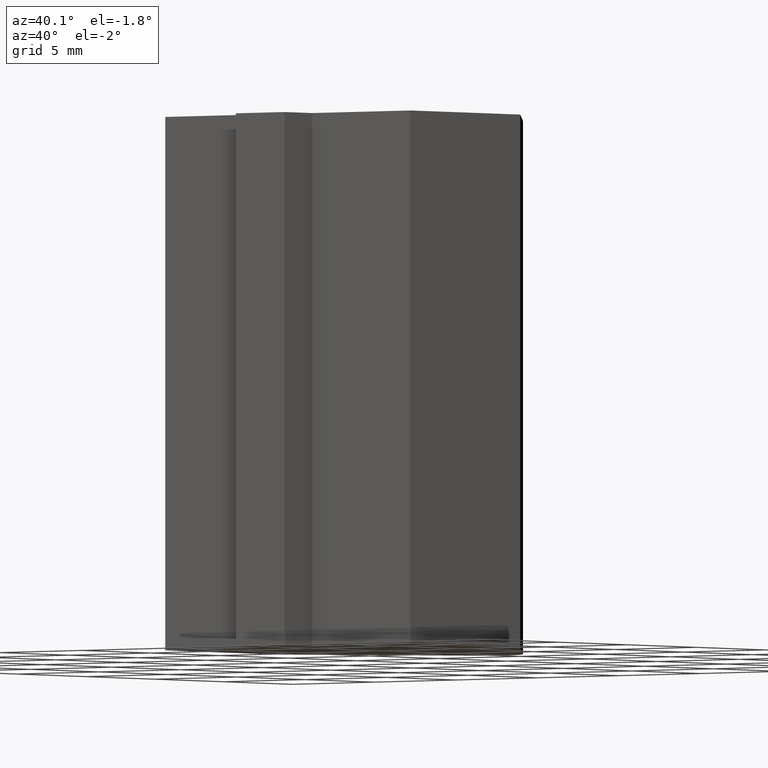
[diagram: clean part render]
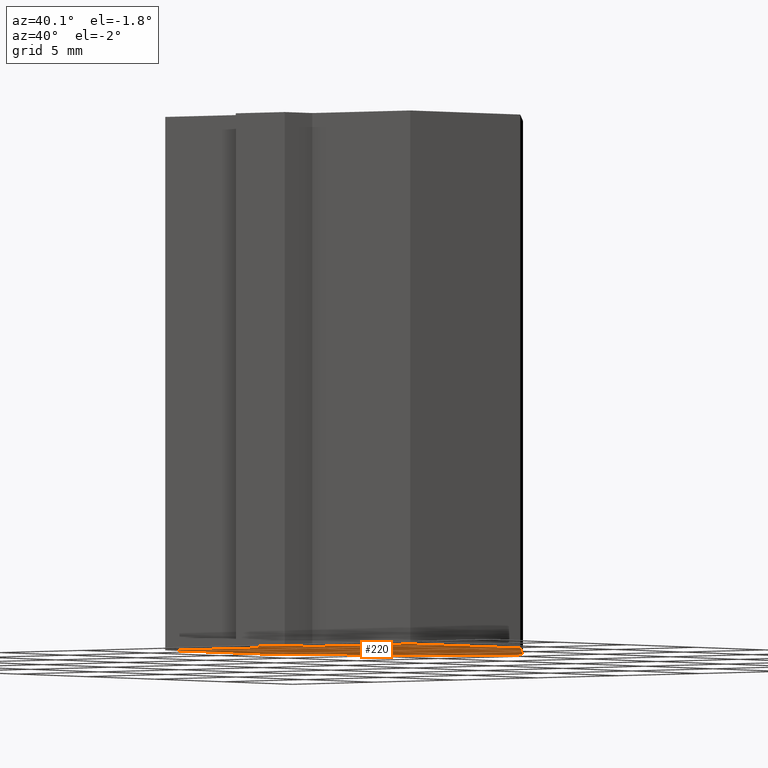
[diagram: same view with one face highlighted and labeled with its STEP entity id]
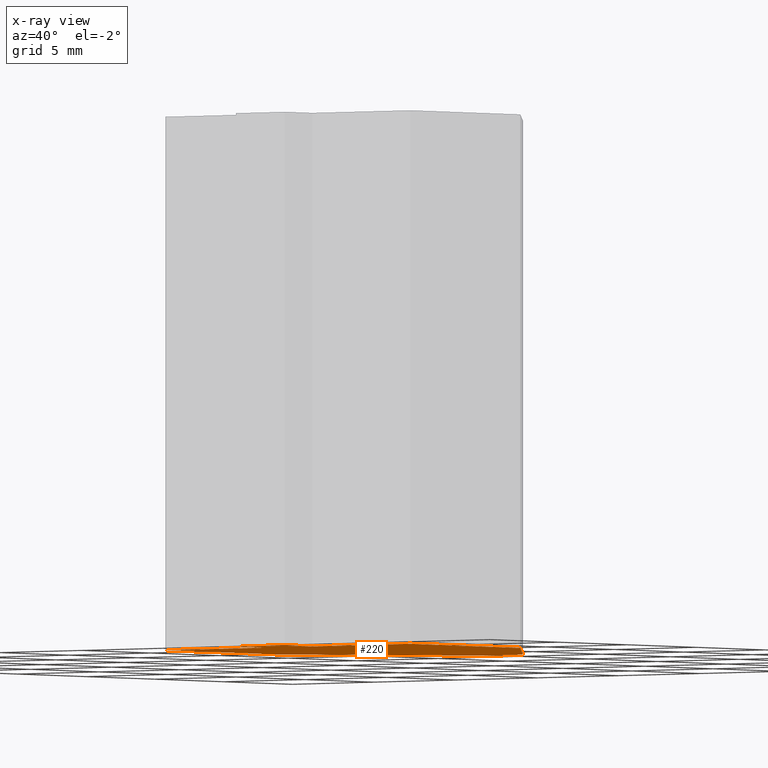
[diagram: x-ray of the same camera — body ghosted, the highlighted face saturated]
A machine part, auxiliary view. The second image highlights one B-rep face of the part: STEP entity #220.
The next image is the same camera in x-ray: the body ghosted, the highlighted face saturated — about 0% of this face is hidden behind the body in this view.
In plain terms, the highlighted planar face has unit normal (0, 0, 1).
Its self-contained STEP definition (entity closure, byte-faithful):
#17=FACE_OUTER_BOUND('',#29,.T.);
#29=EDGE_LOOP('',(#149,#150,#151,#152,#153,#154,#155,#156,#157,#158));
#41=CIRCLE('',#256,2.);
#43=LINE('',#331,#71);
#44=LINE('',#333,#72);
#45=LINE('',#335,#73);
#46=LINE('',#337,#74);
#47=LINE('',#339,#75);
#48=LINE('',#341,#76);
#49=LINE('',#343,#77);
#50=LINE('',#345,#78);
#51=LINE('',#348,#79);
#71=VECTOR('',#273,10.);
#72=VECTOR('',#274,10.);
#73=VECTOR('',#275,10.);
#74=VECTOR('',#276,10.);
#75=VECTOR('',#277,10.);
#76=VECTOR('',#278,10.);
#77=VECTOR('',#279,10.);
#78=VECTOR('',#280,10.);
#79=VECTOR('',#283,10.);
#99=VERTEX_POINT('',#329);
#100=VERTEX_POINT('',#330);
#101=VERTEX_POINT('',#332);
#102=VERTEX_POINT('',#334);
#103=VERTEX_POINT('',#336);
#104=VERTEX_POINT('',#338);
#105=VERTEX_POINT('',#340);
#106=VERTEX_POINT('',#342);
#107=VERTEX_POINT('',#344);
#108=VERTEX_POINT('',#346);
#119=EDGE_CURVE('',#99,#100,#43,.T.);
#120=EDGE_CURVE('',#101,#99,#44,.T.);
#121=EDGE_CURVE('',#102,#101,#45,.T.);
#122=EDGE_CURVE('',#103,#102,#46,.T.);
#123=EDGE_CURVE('',#104,#103,#47,.T.);
#124=EDGE_CURVE('',#105,#104,#48,.T.);
#125=EDGE_CURVE('',#106,#105,#49,.T.);
#126=EDGE_CURVE('',#107,#106,#50,.T.);
#127=EDGE_CURVE('',#108,#107,#41,.T.);
#128=EDGE_CURVE('',#100,#108,#51,.T.);
#149=ORIENTED_EDGE('',*,*,#119,.F.);
#150=ORIENTED_EDGE('',*,*,#120,.F.);
#151=ORIENTED_EDGE('',*,*,#121,.F.);
#152=ORIENTED_EDGE('',*,*,#122,.F.);
#153=ORIENTED_EDGE('',*,*,#123,.F.);
#154=ORIENTED_EDGE('',*,*,#124,.F.);
#155=ORIENTED_EDGE('',*,*,#125,.F.);
#156=ORIENTED_EDGE('',*,*,#126,.F.);
#157=ORIENTED_EDGE('',*,*,#127,.F.);
#158=ORIENTED_EDGE('',*,*,#128,.F.);
#209=PLANE('',#255);
#220=ADVANCED_FACE('',(#17),#209,.F.);
#255=AXIS2_PLACEMENT_3D('',#328,#271,#272);
#256=AXIS2_PLACEMENT_3D('',#347,#281,#282);
#271=DIRECTION('center_axis',(0.,0.,1.));
#272=DIRECTION('ref_axis',(1.,0.,0.));
#273=DIRECTION('',(0.,1.,0.));
#274=DIRECTION('',(1.,-1.22464679914736E-16,0.));
#275=DIRECTION('',(-5.55111512312578E-16,1.,0.));
#276=DIRECTION('',(1.,0.,0.));
#277=DIRECTION('',(-5.55111512312578E-16,-1.,0.));
#278=DIRECTION('',(1.,1.22464679914736E-16,0.));
#279=DIRECTION('',(0.,-1.,0.));
#280=DIRECTION('',(-0.633670497075444,-0.773603064327023,0.));
#281=DIRECTION('center_axis',(0.,0.,1.));
#282=DIRECTION('ref_axis',(-0.773603064327022,-0.633670497075445,0.));
#283=DIRECTION('',(-0.633670497075444,0.773603064327023,0.));
#328=CARTESIAN_POINT('Origin',(-4.16333634234434E-16,5.72386949192024,-12.5));
#329=CARTESIAN_POINT('',(7.5,2.21076160048808E-15,-12.5));
#330=CARTESIAN_POINT('',(7.5,8.,-12.5));
#331=CARTESIAN_POINT('',(7.5,8.,-12.5));
#332=CARTESIAN_POINT('',(1.5,2.9455496799765E-15,-12.5));
#333=CARTESIAN_POINT('',(7.5,2.21076160048808E-15,-12.5));
#334=CARTESIAN_POINT('',(1.5,-2.,-12.5));
#335=CARTESIAN_POINT('',(1.5,2.9455496799765E-15,-12.5));
#336=CARTESIAN_POINT('',(-1.5,-2.,-12.5));
#337=CARTESIAN_POINT('',(1.5,-2.,-12.5));
#338=CARTESIAN_POINT('',(-1.5,2.9455496799765E-15,-12.5));
#339=CARTESIAN_POINT('',(-1.5,-2.,-12.5));
#340=CARTESIAN_POINT('',(-7.5,2.21076160048808E-15,-12.5));
#341=CARTESIAN_POINT('',(-1.5,2.9455496799765E-15,-12.5));
#342=CARTESIAN_POINT('',(-7.5,8.,-12.5));
#343=CARTESIAN_POINT('',(-7.5,2.21076160048808E-15,-12.5));
#344=CARTESIAN_POINT('',(-1.54720612865404,15.2673409941509,-12.5));
#345=CARTESIAN_POINT('',(-7.5,8.,-12.5));
#346=CARTESIAN_POINT('',(1.54720612865404,15.2673409941509,-12.5));
#347=CARTESIAN_POINT('Origin',(0.,14.,-12.5));
#348=CARTESIAN_POINT('',(1.54720612865404,15.2673409941509,-12.5));